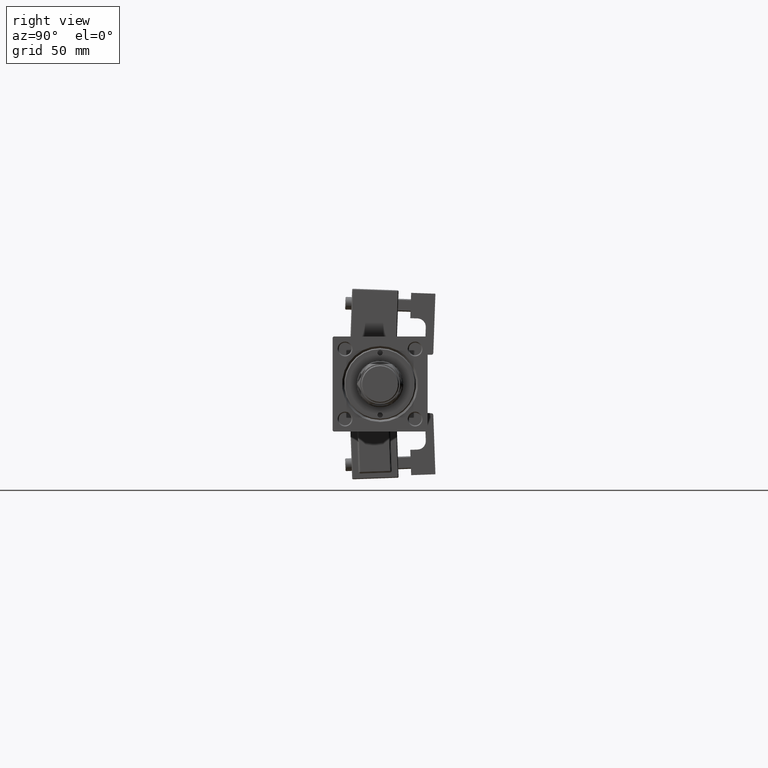
[diagram: clean part render]
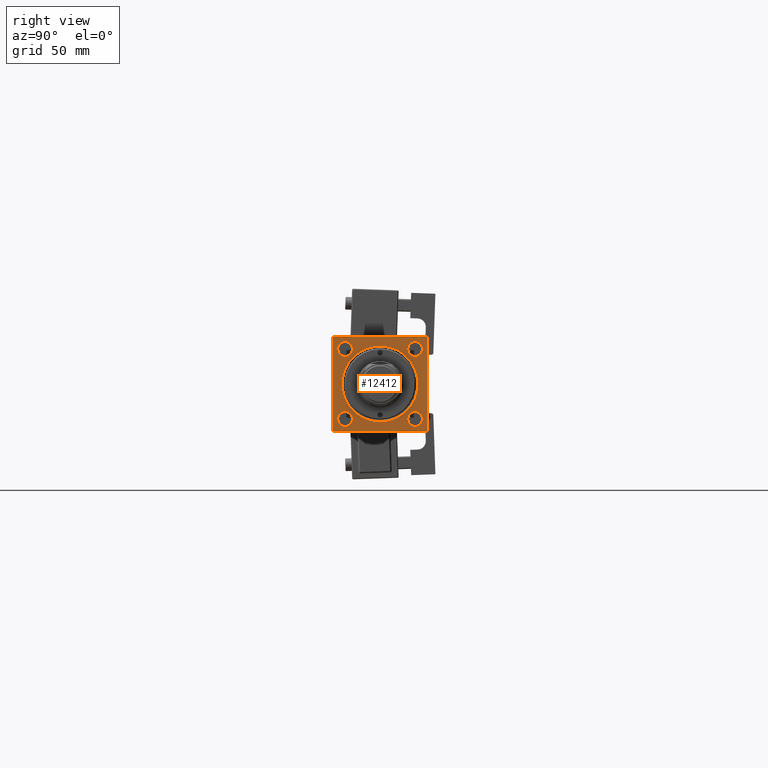
[diagram: same view with one face highlighted and labeled with its STEP entity id]
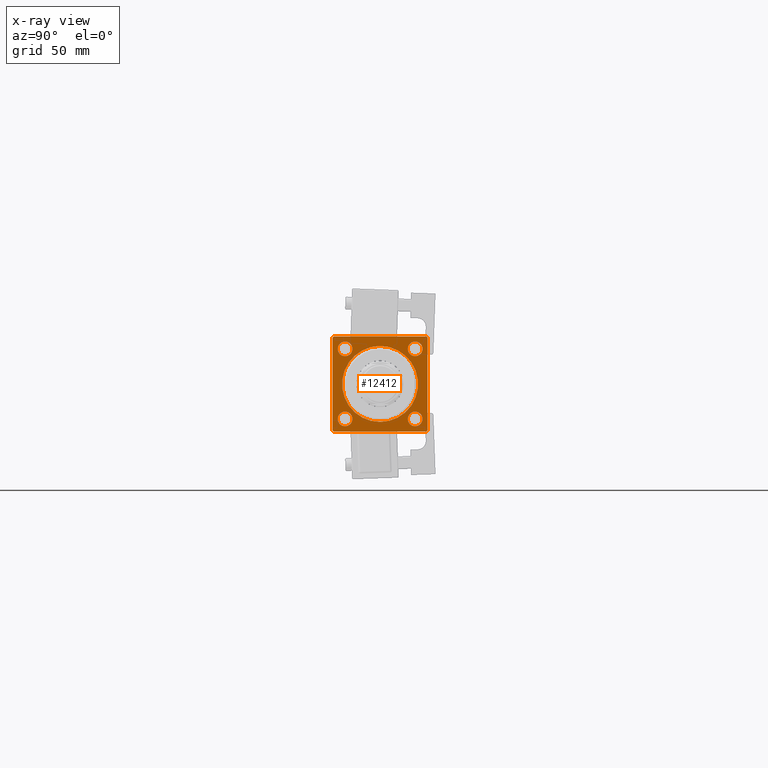
[diagram: x-ray of the same camera — body ghosted, the highlighted face saturated]
A machine part, right view. The second image highlights one B-rep face of the part: STEP entity #12412.
The next image is the same camera in x-ray: the body ghosted, the highlighted face saturated — about 0% of this face is hidden behind the body in this view.
In plain terms, the highlighted planar face has unit normal (-1, 0, 0).
Its self-contained STEP definition (entity closure, byte-faithful):
#306 = CARTESIAN_POINT ( 'NONE',  ( 263.0000000000000000, -22.49999999999999645, 22.49999999999999289 ) ) ;
#315 = VERTEX_POINT ( 'NONE', #4142 ) ;
#665 = CARTESIAN_POINT ( 'NONE',  ( 263.0000000000000000, -16.59999999999999787, 13.09999999999996589 ) ) ;
#1199 = CARTESIAN_POINT ( 'NONE',  ( 263.0000000000000000, 22.50000000000000355, -22.49999999999999645 ) ) ;
#1415 = DIRECTION ( 'NONE',  ( -1.000000000000000000, 0.000000000000000000, -0.000000000000000000 ) ) ;
#1530 = CARTESIAN_POINT ( 'NONE',  ( 263.0000000000000000, 22.50000000000000355, 22.50000000000000355 ) ) ;
#2099 = VERTEX_POINT ( 'NONE', #28898 ) ;
#2954 = DIRECTION ( 'NONE',  ( 0.000000000000000000, 0.000000000000000000, 1.000000000000000000 ) ) ;
#3201 = DIRECTION ( 'NONE',  ( -1.000000000000000000, 0.000000000000000000, -0.000000000000000000 ) ) ;
#3932 = VECTOR ( 'NONE', #47802, 1000.000000000000114 ) ;
#4103 = ORIENTED_EDGE ( 'NONE', *, *, #16733, .F. ) ;
#4142 = CARTESIAN_POINT ( 'NONE',  ( 263.0000000000000000, 16.59999999999999787, 13.09999999999997300 ) ) ;
#4284 = CARTESIAN_POINT ( 'NONE',  ( 263.0000000000000000, 22.50000000000000355, 22.50000000000000355 ) ) ;
#4474 = VERTEX_POINT ( 'NONE', #46060 ) ;
#4756 = AXIS2_PLACEMENT_3D ( 'NONE', #13239, #20931, #16820 ) ;
#4826 = LINE ( 'NONE', #1530, #11108 ) ;
#5213 = EDGE_CURVE ( 'NONE', #29374, #52349, #22028, .T. ) ;
#5530 = FACE_BOUND ( 'NONE', #51517, .T. ) ;
#5605 = CARTESIAN_POINT ( 'NONE',  ( 263.0000000000000000, 16.59999999999999787, -13.09999999999997300 ) ) ;
#5720 = EDGE_CURVE ( 'NONE', #315, #23337, #26464, .T. ) ;
#5778 = AXIS2_PLACEMENT_3D ( 'NONE', #46848, #26021, #42729 ) ;
#6039 = DIRECTION ( 'NONE',  ( 0.000000000000000000, -0.7071067811865672237, 0.7071067811865279218 ) ) ;
#6144 = DIRECTION ( 'NONE',  ( -0.000000000000000000, -0.7071067811865672237, -0.7071067811865279218 ) ) ;
#6657 = CARTESIAN_POINT ( 'NONE',  ( 263.0000000000000000, 22.50000000000000355, -21.99999999999993960 ) ) ;
#6834 = DIRECTION ( 'NONE',  ( 0.000000000000000000, 0.000000000000000000, 1.000000000000000000 ) ) ;
#6900 = DIRECTION ( 'NONE',  ( -1.000000000000000000, 0.000000000000000000, -0.000000000000000000 ) ) ;
#7188 = ORIENTED_EDGE ( 'NONE', *, *, #15437, .T. ) ;
#7190 = LINE ( 'NONE', #11572, #51307 ) ;
#8092 = VECTOR ( 'NONE', #34028, 1000.000000000000000 ) ;
#9249 = EDGE_CURVE ( 'NONE', #4474, #53149, #14319, .T. ) ;
#9370 = EDGE_CURVE ( 'NONE', #37845, #33378, #15720, .T. ) ;
#10194 = PLANE ( 'NONE',  #46808 ) ;
#10453 = ORIENTED_EDGE ( 'NONE', *, *, #17971, .T. ) ;
#10764 = CARTESIAN_POINT ( 'NONE',  ( 263.0000000000000000, 22.50000000000000355, -21.99999999999992539 ) ) ;
#11108 = VECTOR ( 'NONE', #17174, 1000.000000000000000 ) ;
#11165 = DIRECTION ( 'NONE',  ( 0.000000000000000000, 0.000000000000000000, 1.000000000000000000 ) ) ;
#11572 = CARTESIAN_POINT ( 'NONE',  ( 263.0000000000000000, -21.99999999999993960, -22.50000000000000000 ) ) ;
#11659 = CARTESIAN_POINT ( 'NONE',  ( 263.0000000000000000, 22.50000000000000355, 22.00000000000000355 ) ) ;
#11810 = DIRECTION ( 'NONE',  ( -1.000000000000000000, 0.000000000000000000, -0.000000000000000000 ) ) ;
#12255 = CARTESIAN_POINT ( 'NONE',  ( 263.0000000000000000, 16.59999999999999787, 16.60000000000000497 ) ) ;
#12412 = ADVANCED_FACE ( 'NONE', ( #26375, #5530, #50537, #50266, #46399, #29410 ), #10194, .F. ) ;
#13239 = CARTESIAN_POINT ( 'NONE',  ( 263.0000000000000000, -16.60000000000000497, -16.60000000000000497 ) ) ;
#13266 = VERTEX_POINT ( 'NONE', #48106 ) ;
#14319 = CIRCLE ( 'NONE', #30954, 17.99999999999998934 ) ;
#14463 = ORIENTED_EDGE ( 'NONE', *, *, #9249, .T. ) ;
#14829 = CARTESIAN_POINT ( 'NONE',  ( 263.0000000000000000, -22.49999999999999645, 21.99999999999999289 ) ) ;
#14949 = EDGE_CURVE ( 'NONE', #53149, #4474, #47842, .T. ) ;
#15437 = EDGE_CURVE ( 'NONE', #37013, #50902, #39994, .T. ) ;
#15471 = CARTESIAN_POINT ( 'NONE',  ( 263.0000000000000000, -22.49999999999999645, -21.99999999999992184 ) ) ;
#15575 = VERTEX_POINT ( 'NONE', #15471 ) ;
#15720 = LINE ( 'NONE', #43708, #48461 ) ;
#16025 = CARTESIAN_POINT ( 'NONE',  ( 263.0000000000000000, 16.59999999999999787, 20.10000000000003340 ) ) ;
#16293 = ORIENTED_EDGE ( 'NONE', *, *, #40319, .T. ) ;
#16733 = EDGE_CURVE ( 'NONE', #44353, #31366, #4826, .T. ) ;
#16820 = DIRECTION ( 'NONE',  ( 0.000000000000000000, 0.000000000000000000, 1.000000000000000000 ) ) ;
#17174 = DIRECTION ( 'NONE',  ( 0.000000000000000000, 0.000000000000000000, -1.000000000000000000 ) ) ;
#17199 = EDGE_LOOP ( 'NONE', ( #16293, #10453 ) ) ;
#17865 = ORIENTED_EDGE ( 'NONE', *, *, #9370, .T. ) ;
#17971 = EDGE_CURVE ( 'NONE', #25186, #37993, #32041, .T. ) ;
#17987 = EDGE_CURVE ( 'NONE', #23337, #315, #19800, .T. ) ;
#18216 = CARTESIAN_POINT ( 'NONE',  ( 263.0000000000000000, 0.000000000000000000, 0.000000000000000000 ) ) ;
#18656 = ORIENTED_EDGE ( 'NONE', *, *, #47427, .T. ) ;
#18935 = VECTOR ( 'NONE', #47268, 1000.000000000000000 ) ;
#19790 = ORIENTED_EDGE ( 'NONE', *, *, #48831, .T. ) ;
#19800 = CIRCLE ( 'NONE', #51309, 3.500000000000031086 ) ;
#20931 = DIRECTION ( 'NONE',  ( -1.000000000000000000, 0.000000000000000000, -0.000000000000000000 ) ) ;
#20977 = CARTESIAN_POINT ( 'NONE',  ( 263.0000000000000000, 2.204364238465234244E-15, 17.99999999999998934 ) ) ;
#21295 = DIRECTION ( 'NONE',  ( 0.000000000000000000, -1.000000000000000000, -2.312964634635742957E-16 ) ) ;
#21404 = CIRCLE ( 'NONE', #4756, 3.500000000000031086 ) ;
#21428 = LINE ( 'NONE', #306, #8092 ) ;
#21912 = AXIS2_PLACEMENT_3D ( 'NONE', #23299, #27683, #6834 ) ;
#22028 = CIRCLE ( 'NONE', #30788, 3.500000000000031086 ) ;
#22419 = AXIS2_PLACEMENT_3D ( 'NONE', #31589, #6900, #52977 ) ;
#22439 = DIRECTION ( 'NONE',  ( -1.000000000000000000, 0.000000000000000000, -0.000000000000000000 ) ) ;
#22751 = CARTESIAN_POINT ( 'NONE',  ( 263.0000000000000000, -16.59999999999999787, 20.10000000000002629 ) ) ;
#22859 = CARTESIAN_POINT ( 'NONE',  ( 263.0000000000000000, 16.59999999999999787, -20.10000000000003340 ) ) ;
#22945 = AXIS2_PLACEMENT_3D ( 'NONE', #12255, #24880, #2954 ) ;
#23299 = CARTESIAN_POINT ( 'NONE',  ( 263.0000000000000000, 16.59999999999999787, -16.60000000000000497 ) ) ;
#23337 = VERTEX_POINT ( 'NONE', #16025 ) ;
#23688 = EDGE_CURVE ( 'NONE', #44353, #45314, #37315, .T. ) ;
#24640 = CARTESIAN_POINT ( 'NONE',  ( 263.0000000000000000, 16.59999999999999787, -16.60000000000000497 ) ) ;
#24880 = DIRECTION ( 'NONE',  ( -1.000000000000000000, 0.000000000000000000, -0.000000000000000000 ) ) ;
#25186 = VERTEX_POINT ( 'NONE', #29519 ) ;
#25987 = AXIS2_PLACEMENT_3D ( 'NONE', #45681, #3201, #11165 ) ;
#26021 = DIRECTION ( 'NONE',  ( -1.000000000000000000, 0.000000000000000000, -0.000000000000000000 ) ) ;
#26375 = FACE_BOUND ( 'NONE', #52252, .T. ) ;
#26464 = CIRCLE ( 'NONE', #22945, 3.500000000000031086 ) ;
#26559 = CARTESIAN_POINT ( 'NONE',  ( 263.0000000000000000, 16.59999999999999787, 16.60000000000000497 ) ) ;
#26688 = ORIENTED_EDGE ( 'NONE', *, *, #5720, .T. ) ;
#27683 = DIRECTION ( 'NONE',  ( -1.000000000000000000, 0.000000000000000000, -0.000000000000000000 ) ) ;
#27701 = VECTOR ( 'NONE', #21295, 1000.000000000000000 ) ;
#28042 = EDGE_CURVE ( 'NONE', #50902, #37013, #45547, .T. ) ;
#28898 = CARTESIAN_POINT ( 'NONE',  ( 263.0000000000000000, 21.99999999999994671, -22.49999999999999645 ) ) ;
#29374 = VERTEX_POINT ( 'NONE', #22751 ) ;
#29410 = FACE_OUTER_BOUND ( 'NONE', #42080, .T. ) ;
#29519 = CARTESIAN_POINT ( 'NONE',  ( 263.0000000000000000, -16.60000000000000497, -13.09999999999997300 ) ) ;
#29523 = LINE ( 'NONE', #4284, #27701 ) ;
#29649 = ORIENTED_EDGE ( 'NONE', *, *, #43434, .T. ) ;
#30253 = CARTESIAN_POINT ( 'NONE',  ( 263.0000000000000000, -16.60000000000000497, -20.10000000000003340 ) ) ;
#30264 = LINE ( 'NONE', #1199, #18935 ) ;
#30404 = ORIENTED_EDGE ( 'NONE', *, *, #41220, .T. ) ;
#30788 = AXIS2_PLACEMENT_3D ( 'NONE', #32374, #11810, #48844 ) ;
#30954 = AXIS2_PLACEMENT_3D ( 'NONE', #18216, #39316, #34928 ) ;
#31366 = VERTEX_POINT ( 'NONE', #10764 ) ;
#31589 = CARTESIAN_POINT ( 'NONE',  ( 263.0000000000000000, 0.000000000000000000, 0.000000000000000000 ) ) ;
#32041 = CIRCLE ( 'NONE', #5778, 3.500000000000031086 ) ;
#32374 = CARTESIAN_POINT ( 'NONE',  ( 263.0000000000000000, -16.59999999999999787, 16.59999999999999787 ) ) ;
#32598 = DIRECTION ( 'NONE',  ( 0.000000000000000000, 0.000000000000000000, 1.000000000000000000 ) ) ;
#32851 = ORIENTED_EDGE ( 'NONE', *, *, #5213, .T. ) ;
#33378 = VERTEX_POINT ( 'NONE', #14829 ) ;
#33598 = EDGE_LOOP ( 'NONE', ( #14463, #35343 ) ) ;
#34028 = DIRECTION ( 'NONE',  ( 0.000000000000000000, 0.000000000000000000, -1.000000000000000000 ) ) ;
#34928 = DIRECTION ( 'NONE',  ( 0.000000000000000000, 0.000000000000000000, 1.000000000000000000 ) ) ;
#35293 = EDGE_CURVE ( 'NONE', #33378, #15575, #21428, .T. ) ;
#35343 = ORIENTED_EDGE ( 'NONE', *, *, #14949, .T. ) ;
#36115 = ORIENTED_EDGE ( 'NONE', *, *, #47860, .F. ) ;
#36984 = DIRECTION ( 'NONE',  ( -1.000000000000000000, 0.000000000000000000, -0.000000000000000000 ) ) ;
#37013 = VERTEX_POINT ( 'NONE', #5605 ) ;
#37315 = LINE ( 'NONE', #53800, #51542 ) ;
#37492 = ORIENTED_EDGE ( 'NONE', *, *, #17987, .T. ) ;
#37845 = VERTEX_POINT ( 'NONE', #45096 ) ;
#37993 = VERTEX_POINT ( 'NONE', #30253 ) ;
#39162 = DIRECTION ( 'NONE',  ( 0.000000000000000000, 0.000000000000000000, 1.000000000000000000 ) ) ;
#39316 = DIRECTION ( 'NONE',  ( -1.000000000000000000, 0.000000000000000000, -0.000000000000000000 ) ) ;
#39994 = CIRCLE ( 'NONE', #52263, 3.500000000000031086 ) ;
#40061 = CARTESIAN_POINT ( 'NONE',  ( 263.0000000000000000, 0.000000000000000000, 0.000000000000000000 ) ) ;
#40113 = ORIENTED_EDGE ( 'NONE', *, *, #28042, .T. ) ;
#40319 = EDGE_CURVE ( 'NONE', #37993, #25186, #21404, .T. ) ;
#41220 = EDGE_CURVE ( 'NONE', #2099, #31366, #48067, .T. ) ;
#41742 = CIRCLE ( 'NONE', #25987, 3.500000000000031086 ) ;
#42080 = EDGE_LOOP ( 'NONE', ( #48893, #29649, #36115, #30404, #4103, #50126, #18656, #17865 ) ) ;
#42729 = DIRECTION ( 'NONE',  ( 0.000000000000000000, 0.000000000000000000, 1.000000000000000000 ) ) ;
#43434 = EDGE_CURVE ( 'NONE', #15575, #13266, #7190, .T. ) ;
#43708 = CARTESIAN_POINT ( 'NONE',  ( 263.0000000000000000, -22.49999999999999645, 21.99999999999999289 ) ) ;
#44353 = VERTEX_POINT ( 'NONE', #11659 ) ;
#45096 = CARTESIAN_POINT ( 'NONE',  ( 263.0000000000000000, -21.99999999999995381, 22.49999999999999289 ) ) ;
#45314 = VERTEX_POINT ( 'NONE', #53633 ) ;
#45547 = CIRCLE ( 'NONE', #21912, 3.500000000000031086 ) ;
#45564 = DIRECTION ( 'NONE',  ( 0.000000000000000000, 0.7071067811865426878, -0.7071067811865524577 ) ) ;
#45681 = CARTESIAN_POINT ( 'NONE',  ( 263.0000000000000000, -16.59999999999999787, 16.59999999999999787 ) ) ;
#46060 = CARTESIAN_POINT ( 'NONE',  ( 263.0000000000000000, 0.000000000000000000, -17.99999999999998934 ) ) ;
#46399 = FACE_BOUND ( 'NONE', #33598, .T. ) ;
#46808 = AXIS2_PLACEMENT_3D ( 'NONE', #40061, #1415, #48572 ) ;
#46848 = CARTESIAN_POINT ( 'NONE',  ( 263.0000000000000000, -16.60000000000000497, -16.60000000000000497 ) ) ;
#47268 = DIRECTION ( 'NONE',  ( 0.000000000000000000, -1.000000000000000000, -7.709882115452476934E-17 ) ) ;
#47427 = EDGE_CURVE ( 'NONE', #45314, #37845, #29523, .T. ) ;
#47802 = DIRECTION ( 'NONE',  ( -0.000000000000000000, 0.7071067811865474617, 0.7071067811865474617 ) ) ;
#47842 = CIRCLE ( 'NONE', #22419, 17.99999999999998934 ) ;
#47860 = EDGE_CURVE ( 'NONE', #2099, #13266, #30264, .T. ) ;
#48067 = LINE ( 'NONE', #6657, #3932 ) ;
#48106 = CARTESIAN_POINT ( 'NONE',  ( 263.0000000000000000, -21.99999999999992539, -22.50000000000000000 ) ) ;
#48461 = VECTOR ( 'NONE', #6144, 1000.000000000000000 ) ;
#48572 = DIRECTION ( 'NONE',  ( -0.000000000000000000, 0.000000000000000000, 1.000000000000000000 ) ) ;
#48831 = EDGE_CURVE ( 'NONE', #52349, #29374, #41742, .T. ) ;
#48844 = DIRECTION ( 'NONE',  ( 0.000000000000000000, 0.000000000000000000, 1.000000000000000000 ) ) ;
#48893 = ORIENTED_EDGE ( 'NONE', *, *, #35293, .T. ) ;
#50126 = ORIENTED_EDGE ( 'NONE', *, *, #23688, .T. ) ;
#50266 = FACE_BOUND ( 'NONE', #54004, .T. ) ;
#50537 = FACE_BOUND ( 'NONE', #17199, .T. ) ;
#50902 = VERTEX_POINT ( 'NONE', #22859 ) ;
#51307 = VECTOR ( 'NONE', #45564, 1000.000000000000000 ) ;
#51309 = AXIS2_PLACEMENT_3D ( 'NONE', #26559, #22439, #39162 ) ;
#51517 = EDGE_LOOP ( 'NONE', ( #19790, #32851 ) ) ;
#51542 = VECTOR ( 'NONE', #6039, 1000.000000000000000 ) ;
#52252 = EDGE_LOOP ( 'NONE', ( #26688, #37492 ) ) ;
#52263 = AXIS2_PLACEMENT_3D ( 'NONE', #24640, #36984, #32598 ) ;
#52349 = VERTEX_POINT ( 'NONE', #665 ) ;
#52977 = DIRECTION ( 'NONE',  ( 0.000000000000000000, 0.000000000000000000, 1.000000000000000000 ) ) ;
#53149 = VERTEX_POINT ( 'NONE', #20977 ) ;
#53633 = CARTESIAN_POINT ( 'NONE',  ( 263.0000000000000000, 21.99999999999997513, 22.50000000000000355 ) ) ;
#53800 = CARTESIAN_POINT ( 'NONE',  ( 263.0000000000000000, 21.99999999999997513, 22.50000000000000355 ) ) ;
#54004 = EDGE_LOOP ( 'NONE', ( #40113, #7188 ) ) ;